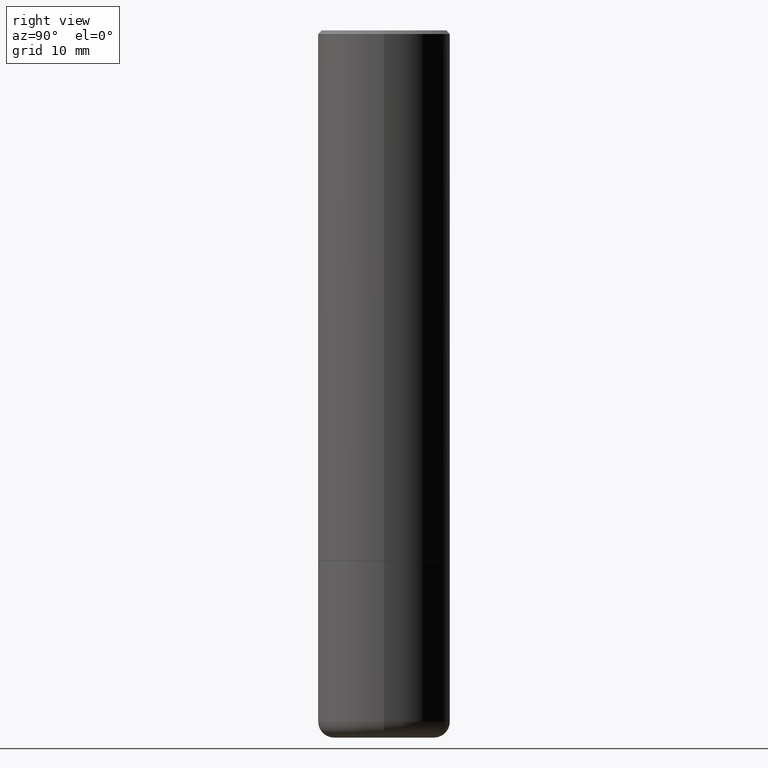
[diagram: clean part render]
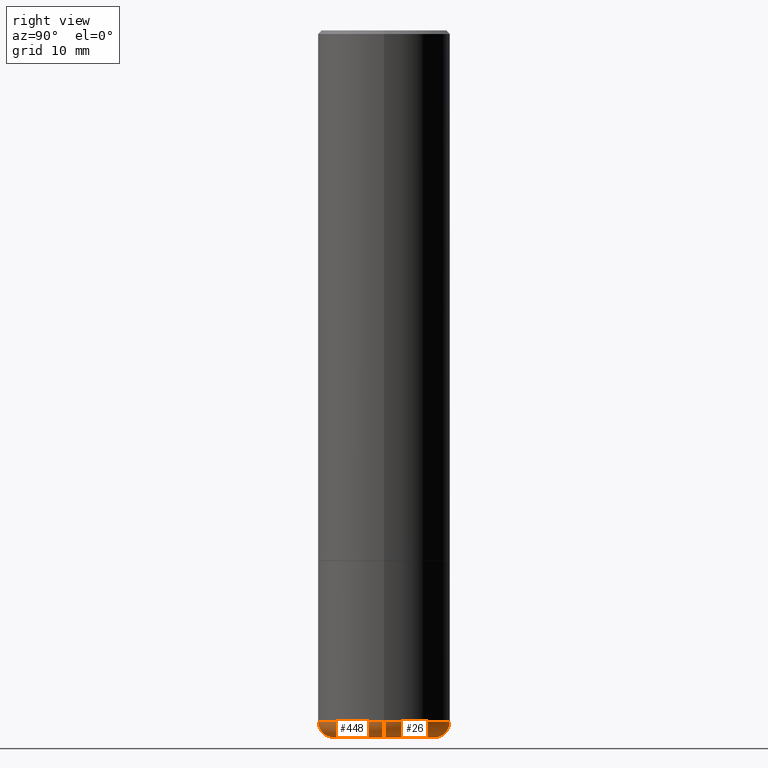
[diagram: same view with one multi-face feature highlighted, each face labeled with its STEP entity id]
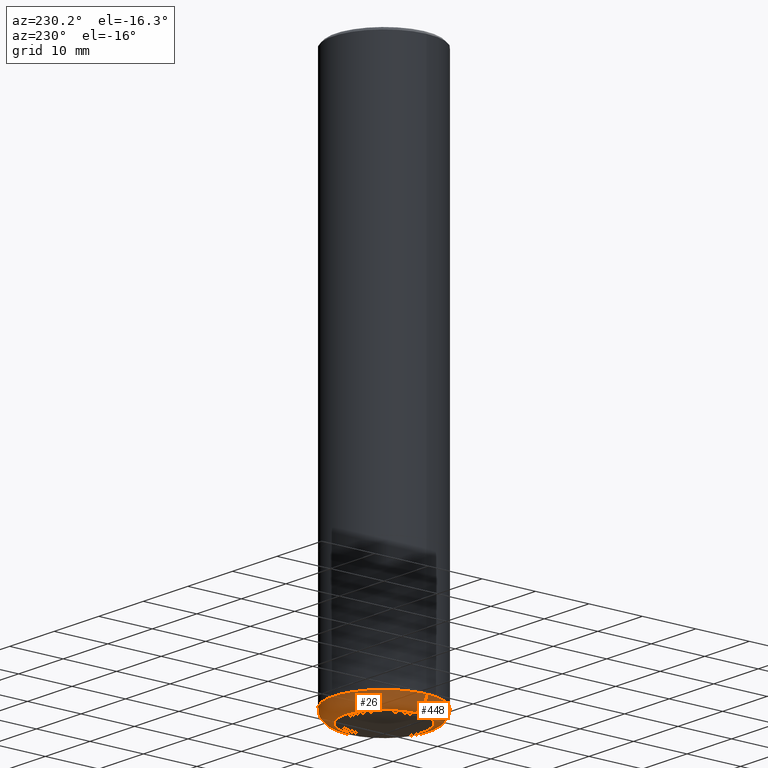
[diagram: same view with one multi-face feature highlighted, each face labeled with its STEP entity id]
A machine part, right view. The highlighted faces form ONE feature: a constant-radius fillet chain: 2 tangent blend faces with common blend radius 2.286 mm. The faces share edges in the B-rep.
A second angle (auxiliary view) of the same feature is appended — it is thin or edge-on in the first view.
Their STEP definitions:
[1] entity #448 (Torus):
#21 = DIRECTION ( 'NONE',  ( -2.445468806185136597E-29, 3.491481338843145583E-15, 1.000000000000000000 ) ) ;
#43 = CARTESIAN_POINT ( 'NONE',  ( -0.2850000000000003086, -1.162665720300238961E-14, -3.910003426924224534 ) ) ;
#60 = FACE_OUTER_BOUND ( 'NONE', #124, .T. ) ;
#83 = VERTEX_POINT ( 'NONE', #228 ) ;
#94 = TOROIDAL_SURFACE ( 'NONE', #447, 0.2850000000000003086, 0.08999999999999984401 ) ;
#110 = CARTESIAN_POINT ( 'NONE',  ( 0.3750000000000000555, -1.627031500405102774E-14, -3.910003426924224534 ) ) ;
#113 = EDGE_CURVE ( 'NONE', #83, #119, #240, .T. ) ;
#119 = VERTEX_POINT ( 'NONE', #110 ) ;
#124 = EDGE_LOOP ( 'NONE', ( #248, #480, #307, #213 ) ) ;
#132 = DIRECTION ( 'NONE',  ( -2.445468806185136597E-29, 3.491481338843145583E-15, 1.000000000000000000 ) ) ;
#150 = CIRCLE ( 'NONE', #471, 0.3750000000000000555 ) ;
#213 = ORIENTED_EDGE ( 'NONE', *, *, #431, .F. ) ;
#214 = CARTESIAN_POINT ( 'NONE',  ( 9.561791412620176703E-29, -1.365170399991867772E-14, -3.910003426924224534 ) ) ;
#221 = DIRECTION ( 'NONE',  ( 1.000000000000000000, -6.982962677686257244E-15, 0.000000000000000000 ) ) ;
#228 = CARTESIAN_POINT ( 'NONE',  ( 0.2842146118051471215, -1.595058538206101543E-14, -4.000000000000000000 ) ) ;
#231 = EDGE_CURVE ( 'NONE', #287, #385, #425, .T. ) ;
#240 = CIRCLE ( 'NONE', #345, 0.08999999999999985789 ) ;
#248 = ORIENTED_EDGE ( 'NONE', *, *, #231, .F. ) ;
#253 = DIRECTION ( 'NONE',  ( 1.000000000000000000, -6.982962677686267499E-15, 0.000000000000000000 ) ) ;
#263 = CARTESIAN_POINT ( 'NONE',  ( -0.3750000000000000555, -9.398538749123680552E-15, -3.910003426924224534 ) ) ;
#265 = AXIS2_PLACEMENT_3D ( 'NONE', #43, #359, #456 ) ;
#282 = AXIS2_PLACEMENT_3D ( 'NONE', #367, #21, #253 ) ;
#287 = VERTEX_POINT ( 'NONE', #322 ) ;
#292 = CARTESIAN_POINT ( 'NONE',  ( 9.561791412620176703E-29, -1.365170399991867772E-14, -3.910003426924224534 ) ) ;
#307 = ORIENTED_EDGE ( 'NONE', *, *, #113, .T. ) ;
#322 = CARTESIAN_POINT ( 'NONE',  ( -0.2842146118051471215, -1.146681390902031989E-14, -4.000000000000000000 ) ) ;
#345 = AXIS2_PLACEMENT_3D ( 'NONE', #453, #405, #221 ) ;
#359 = DIRECTION ( 'NONE',  ( 7.105427357601001859E-15, 1.000000000000000000, -3.491481338843145583E-15 ) ) ;
#367 = CARTESIAN_POINT ( 'NONE',  ( 9.781875224740546387E-29, -1.396592535537258233E-14, -4.000000000000000000 ) ) ;
#385 = VERTEX_POINT ( 'NONE', #263 ) ;
#405 = DIRECTION ( 'NONE',  ( -6.982962677686266711E-15, -1.000000000000000000, 3.491481338843145583E-15 ) ) ;
#406 = DIRECTION ( 'NONE',  ( 1.000000000000000000, -6.982962677686265133E-15, 4.883557194083112340E-29 ) ) ;
#425 = CIRCLE ( 'NONE', #265, 0.08999999999999985789 ) ;
#431 = EDGE_CURVE ( 'NONE', #385, #119, #150, .T. ) ;
#441 = DIRECTION ( 'NONE',  ( 1.000000000000000000, -6.982962677686266711E-15, 0.000000000000000000 ) ) ;
#444 = DIRECTION ( 'NONE',  ( -2.445468806185136597E-29, 3.491481338843145583E-15, 1.000000000000000000 ) ) ;
#447 = AXIS2_PLACEMENT_3D ( 'NONE', #214, #444, #406 ) ;
#448 = ADVANCED_FACE ( 'NONE', ( #60 ), #94, .T. ) ;
#453 = CARTESIAN_POINT ( 'NONE',  ( 0.2850000000000003086, -1.564184836305926752E-14, -3.910003426924224534 ) ) ;
#456 = DIRECTION ( 'NONE',  ( -1.000000000000000000, 7.105427357601001859E-15, 0.000000000000000000 ) ) ;
#471 = AXIS2_PLACEMENT_3D ( 'NONE', #292, #132, #441 ) ;
#480 = ORIENTED_EDGE ( 'NONE', *, *, #486, .T. ) ;
#486 = EDGE_CURVE ( 'NONE', #287, #83, #488, .T. ) ;
#488 = CIRCLE ( 'NONE', #282, 0.2842146118051471215 ) ;
[2] entity #26 (Torus):
#11 = CIRCLE ( 'NONE', #303, 0.3750000000000000555 ) ;
#26 = ADVANCED_FACE ( 'NONE', ( #38 ), #193, .T. ) ;
#38 = FACE_OUTER_BOUND ( 'NONE', #363, .T. ) ;
#43 = CARTESIAN_POINT ( 'NONE',  ( -0.2850000000000003086, -1.162665720300238961E-14, -3.910003426924224534 ) ) ;
#50 = ORIENTED_EDGE ( 'NONE', *, *, #97, .F. ) ;
#83 = VERTEX_POINT ( 'NONE', #228 ) ;
#97 = EDGE_CURVE ( 'NONE', #119, #385, #11, .T. ) ;
#105 = DIRECTION ( 'NONE',  ( 1.000000000000000000, -6.982962677686267499E-15, 0.000000000000000000 ) ) ;
#110 = CARTESIAN_POINT ( 'NONE',  ( 0.3750000000000000555, -1.627031500405102774E-14, -3.910003426924224534 ) ) ;
#113 = EDGE_CURVE ( 'NONE', #83, #119, #240, .T. ) ;
#119 = VERTEX_POINT ( 'NONE', #110 ) ;
#140 = CARTESIAN_POINT ( 'NONE',  ( 9.781875224740546387E-29, -1.396592535537258233E-14, -4.000000000000000000 ) ) ;
#182 = CARTESIAN_POINT ( 'NONE',  ( 9.561791412620176703E-29, -1.365170399991867772E-14, -3.910003426924224534 ) ) ;
#193 = TOROIDAL_SURFACE ( 'NONE', #260, 0.2850000000000003086, 0.08999999999999984401 ) ;
#211 = ORIENTED_EDGE ( 'NONE', *, *, #461, .T. ) ;
#221 = DIRECTION ( 'NONE',  ( 1.000000000000000000, -6.982962677686257244E-15, 0.000000000000000000 ) ) ;
#228 = CARTESIAN_POINT ( 'NONE',  ( 0.2842146118051471215, -1.595058538206101543E-14, -4.000000000000000000 ) ) ;
#231 = EDGE_CURVE ( 'NONE', #287, #385, #425, .T. ) ;
#236 = CIRCLE ( 'NONE', #381, 0.2842146118051471215 ) ;
#240 = CIRCLE ( 'NONE', #345, 0.08999999999999985789 ) ;
#260 = AXIS2_PLACEMENT_3D ( 'NONE', #182, #450, #301 ) ;
#263 = CARTESIAN_POINT ( 'NONE',  ( -0.3750000000000000555, -9.398538749123680552E-15, -3.910003426924224534 ) ) ;
#265 = AXIS2_PLACEMENT_3D ( 'NONE', #43, #359, #456 ) ;
#268 = CARTESIAN_POINT ( 'NONE',  ( 9.561791412620176703E-29, -1.365170399991867772E-14, -3.910003426924224534 ) ) ;
#287 = VERTEX_POINT ( 'NONE', #322 ) ;
#301 = DIRECTION ( 'NONE',  ( 1.000000000000000000, -6.982962677686265133E-15, 4.883557194083112340E-29 ) ) ;
#302 = DIRECTION ( 'NONE',  ( -2.445468806185136597E-29, 3.491481338843145583E-15, 1.000000000000000000 ) ) ;
#303 = AXIS2_PLACEMENT_3D ( 'NONE', #268, #443, #490 ) ;
#322 = CARTESIAN_POINT ( 'NONE',  ( -0.2842146118051471215, -1.146681390902031989E-14, -4.000000000000000000 ) ) ;
#324 = ORIENTED_EDGE ( 'NONE', *, *, #231, .T. ) ;
#345 = AXIS2_PLACEMENT_3D ( 'NONE', #453, #405, #221 ) ;
#359 = DIRECTION ( 'NONE',  ( 7.105427357601001859E-15, 1.000000000000000000, -3.491481338843145583E-15 ) ) ;
#363 = EDGE_LOOP ( 'NONE', ( #211, #324, #50, #389 ) ) ;
#381 = AXIS2_PLACEMENT_3D ( 'NONE', #140, #302, #105 ) ;
#385 = VERTEX_POINT ( 'NONE', #263 ) ;
#389 = ORIENTED_EDGE ( 'NONE', *, *, #113, .F. ) ;
#405 = DIRECTION ( 'NONE',  ( -6.982962677686266711E-15, -1.000000000000000000, 3.491481338843145583E-15 ) ) ;
#425 = CIRCLE ( 'NONE', #265, 0.08999999999999985789 ) ;
#443 = DIRECTION ( 'NONE',  ( -2.445468806185136597E-29, 3.491481338843145583E-15, 1.000000000000000000 ) ) ;
#450 = DIRECTION ( 'NONE',  ( -2.445468806185136597E-29, 3.491481338843145583E-15, 1.000000000000000000 ) ) ;
#453 = CARTESIAN_POINT ( 'NONE',  ( 0.2850000000000003086, -1.564184836305926752E-14, -3.910003426924224534 ) ) ;
#456 = DIRECTION ( 'NONE',  ( -1.000000000000000000, 7.105427357601001859E-15, 0.000000000000000000 ) ) ;
#461 = EDGE_CURVE ( 'NONE', #83, #287, #236, .T. ) ;
#490 = DIRECTION ( 'NONE',  ( 1.000000000000000000, -6.982962677686266711E-15, 0.000000000000000000 ) ) ;